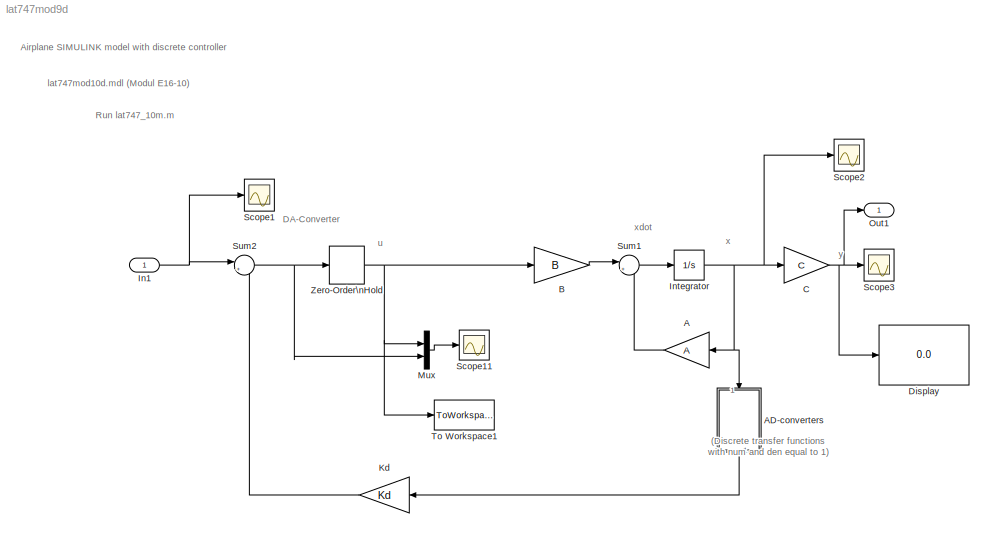
MODEL lat747mod9d
KIND model
BLOCK [Gain] A
  Gain = A
  Multiplication = Matrix(K*u)
  SID = 1
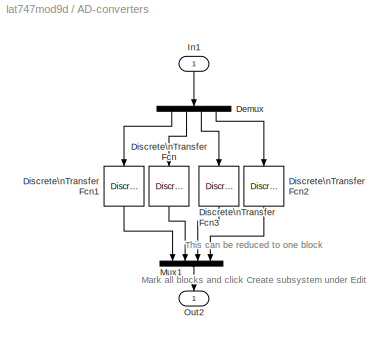
BLOCK [SubSystem] AD-converters
  Ports = [1, 1]
  RequestExecContextInheritance = off
  SID = 2
  Variant = off
BLOCK [Demux] AD-converters/Demux
  Ports = [1, 4]
  SID = 4
BLOCK [DiscreteTransferFcn] AD-converters/Discrete\nTransfer Fcn
  Denominator = 1
  InputPortMap = u0
  Numerator = 1
  Ports = [1, 1]
  SID = 5
  SampleTime = T
BLOCK [DiscreteTransferFcn] AD-converters/Discrete\nTransfer Fcn1
  Denominator = 1
  InputPortMap = u0
  Numerator = 1
  Ports = [1, 1]
  SID = 6
  SampleTime = T
BLOCK [DiscreteTransferFcn] AD-converters/Discrete\nTransfer Fcn2
  Denominator = 1
  InputPortMap = u0
  Numerator = 1
  Ports = [1, 1]
  SID = 7
  SampleTime = T
BLOCK [DiscreteTransferFcn] AD-converters/Discrete\nTransfer Fcn3
  Denominator = 1
  InputPortMap = u0
  Numerator = 1
  Ports = [1, 1]
  SID = 8
  SampleTime = T
BLOCK [Inport] AD-converters/In1
  IconDisplay = Port number
  SID = 3
BLOCK [Mux] AD-converters/Mux1
  DisplayOption = bar
  Ports = [4, 1]
  SID = 9
BLOCK [Outport] AD-converters/Out2
  IconDisplay = Port number
  SID = 10
BLOCK [Gain] B
  Gain = B
  Multiplication = Matrix(K*u)
  SID = 11
BLOCK [Gain] C
  Gain = C
  Multiplication = Matrix(K*u)
  SID = 12
BLOCK [Display] Display
  Decimation = 1
  Ports = [1]
  SID = 13
BLOCK [Inport] In1
  IconDisplay = Port number
  PortDimensions = 2
  SID = 38
BLOCK [Integrator] Integrator
  InitialCondition = 0%[-.050 .02 -.1 .04]'
  Ports = [1, 1]
  SID = 15
BLOCK [Gain] Kd
  Gain = Kd
  Multiplication = Matrix(K*u)
  SID = 16
  SampleTime = T
BLOCK [Mux] Mux
  DisplayOption = bar
  Inputs = 2
  Ports = [2, 1]
  SID = 17
BLOCK [Outport] Out1
  IconDisplay = Port number
  SID = 39
BLOCK [Scope] Scope1
  Ports = [1]
  SID = 19
  ScopeSpecificationString = C++SS(StrPVP('Location','[435, 218, 900, 546]'),StrPVP('Open','off'),MxPVP('AxesTitles',24,'struct(''axes1'',''%<SignalLabel>'')'),MxPVP('ScopeGraphics',28,'struct(''FigureColor'',''[0.5 0.5 0.5]'',''AxesColor'',''[0 0 0]'',''AxesTickColor'',''[1 1 1]'',''LineColors'',''[1 1 0;1 0 1;0 1 1;1 0 0;0 1 0;0 0 1]'',''LineStyles'',''-|-|-|-|-|-'',''LineWidths'',''[0.5 0.5 0.5 0.5 0.5 0.5]'',''MarkerStyle...<+297ch>
BLOCK [Scope] Scope11
  Ports = [1]
  SID = 20
  ScopeSpecificationString = C++SS(StrPVP('Location','[86, 221, 625, 600]'),StrPVP('Open','off'),MxPVP('AxesTitles',24,'struct(''axes1'',''%<SignalLabel>'')'),StrPVP('ShowLegends','off'),StrPVP('DataFormat','StructureWithTime'),StrPVP('LimitDataPoints','off'),StrPVP('BlockParamSampleTime','0'),StrPVP('Decimation','1'),StrPVP('BlockParamSampleInput','off'))
BLOCK [Scope] Scope2
  Ports = [1]
  SID = 21
  ScopeSpecificationString = C++SS(StrPVP('Location','[435, 218, 900, 546]'),StrPVP('Open','off'),MxPVP('AxesTitles',24,'struct(''axes1'',''%<SignalLabel>'')'),StrPVP('ShowLegends','off'),StrPVP('DataFormat','StructureWithTime'),StrPVP('BlockParamSampleTime','0'),StrPVP('LimitDataPoints','on'),StrPVP('Decimation','1'),StrPVP('BlockParamSampleInput','off'))
BLOCK [Scope] Scope3
  Ports = [1]
  SID = 22
  ScopeSpecificationString = C++SS(StrPVP('Location','[53, 109, 518, 437]'),StrPVP('Open','off'),MxPVP('AxesTitles',24,'struct(''axes1'',''%<SignalLabel>'')'),MxPVP('ScopeGraphics',28,'struct(''FigureColor'',''[0.5 0.5 0.5]'',''AxesColor'',''[0 0 0]'',''AxesTickColor'',''[1 1 1]'',''LineColors'',''[1 1 0;1 0 1;0 1 1;1 0 0;0 1 0;0 0 1]'',''LineStyles'',''-|-|-|-|-|-'',''LineWidths'',''[0.5 0.5 0.5 0.5 0.5 0.5]'',''MarkerStyles...<+270ch>
BLOCK [Sum] Sum1
  IconShape = round
  Inputs = |++
  Ports = [2, 1]
  SID = 25
BLOCK [Sum] Sum2
  IconShape = round
  Inputs = |+-
  Ports = [2, 1]
  SID = 26
  SampleTime = T
BLOCK [ToWorkspace] To Workspace1
  MaxDataPoints = inf
  Ports = [1]
  SID = 28
  VariableName = uu
BLOCK [ZeroOrderHold] Zero-Order\nHold
  SID = 29
  SampleTime = T
ANNOTATION (root): (Discrete transfer functions\nwith num and den equal to 1)
ANNOTATION (root): Airplane SIMULINK model with discrete controller
ANNOTATION (root): DA-Converter
ANNOTATION (root): Run lat747_10m.m
ANNOTATION (root): lat747mod10d.mdl (Modul E16-10)
ANNOTATION (root): u
ANNOTATION (root): x
ANNOTATION (root): xdot
ANNOTATION (root): y
ANNOTATION AD-converters: This can be reduced to one block\nMark all blocks and click Create subsystem under Edit
LINE A:1 -> Sum1:2
LINE AD-converters/Demux:1 -> AD-converters/Discrete\nTransfer Fcn1:1
LINE AD-converters/Demux:2 -> AD-converters/Discrete\nTransfer Fcn:1
LINE AD-converters/Demux:3 -> AD-converters/Discrete\nTransfer Fcn3:1
LINE AD-converters/Demux:4 -> AD-converters/Discrete\nTransfer Fcn2:1
LINE AD-converters/Discrete\nTransfer Fcn1:1 -> AD-converters/Mux1:1
LINE AD-converters/Discrete\nTransfer Fcn2:1 -> AD-converters/Mux1:4
LINE AD-converters/Discrete\nTransfer Fcn3:1 -> AD-converters/Mux1:3
LINE AD-converters/Discrete\nTransfer Fcn:1 -> AD-converters/Mux1:2
LINE AD-converters/In1:1 -> AD-converters/Demux:1
LINE AD-converters/Mux1:1 -> AD-converters/Out2:1
LINE AD-converters:1 -> Kd:1
LINE B:1 -> Sum1:1
NET C:1 -> Display:1, Out1:1, Scope3:1
NET In1:1 -> Scope1:1, Sum2:1
NET Integrator:1 -> A:1, AD-converters:1, C:1, Scope2:1
LINE Kd:1 -> Sum2:2
LINE Mux:1 -> Scope11:1
LINE Sum1:1 -> Integrator:1
NET Sum2:1 -> Mux:2, Zero-Order\nHold:1
NET Zero-Order\nHold:1 -> B:1, Mux:1, To Workspace1:1
note: NET lines group one-source signal fan-out (src -> all destinations, sorted); 1:1 wires keep LINE
